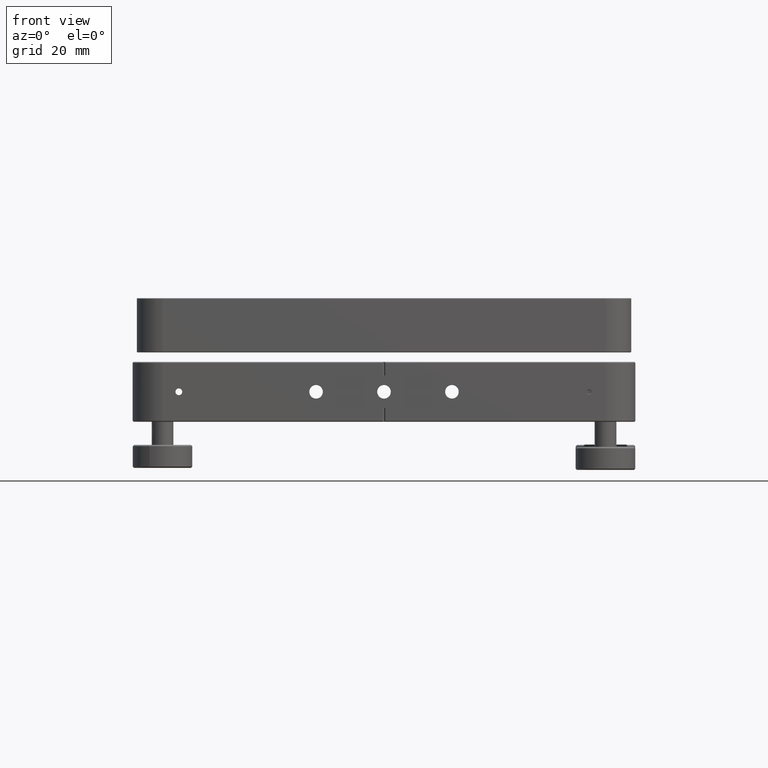
[diagram: clean part render]
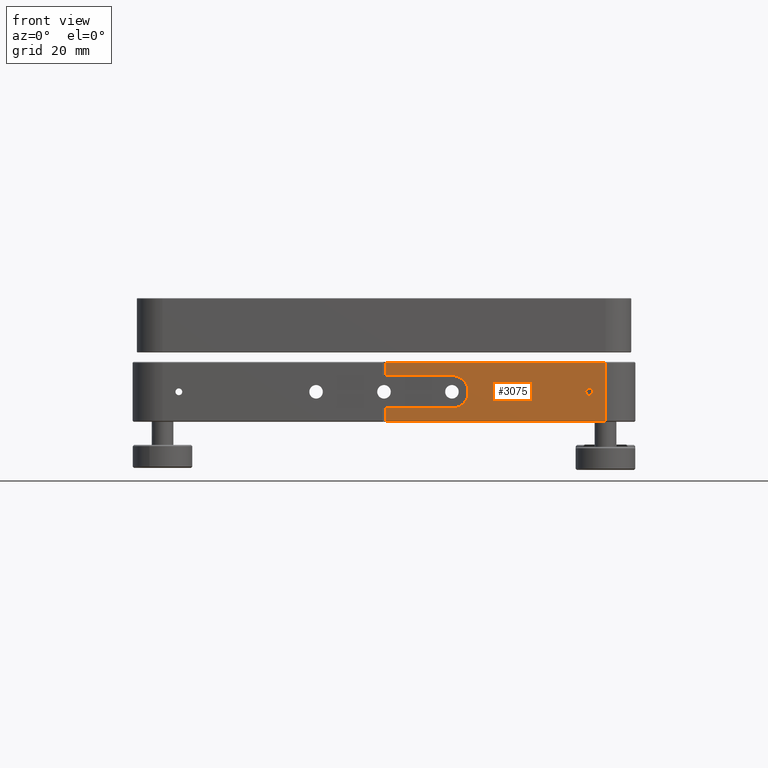
[diagram: same view with one face highlighted and labeled with its STEP entity id]
A machine part, front view. The second image highlights one B-rep face of the part: STEP entity #3075.
In plain terms, the highlighted planar face has unit normal (0, 1, 0).
Its self-contained STEP definition (entity closure, byte-faithful):
#113 = DIRECTION ( 'NONE',  ( -0.000000000000000000, -1.000000000000000000, -0.000000000000000000 ) ) ;
#136 = PLANE ( 'NONE',  #19775 ) ;
#246 = AXIS2_PLACEMENT_3D ( 'NONE', #15838, #5264, #2148 ) ;
#326 = CARTESIAN_POINT ( 'NONE',  ( -92.50000000000000000, -92.50000000000000000, 11.00000000000000000 ) ) ;
#571 = DIRECTION ( 'NONE',  ( -0.000000000000000000, -0.000000000000000000, 1.000000000000000000 ) ) ;
#1625 = CARTESIAN_POINT ( 'NONE',  ( 25.00000000000000711, -92.50000000000000000, -5.999999999999989342 ) ) ;
#1671 = ORIENTED_EDGE ( 'NONE', *, *, #18076, .F. ) ;
#2148 = DIRECTION ( 'NONE',  ( 0.000000000000000000, 0.000000000000000000, -1.000000000000000000 ) ) ;
#2226 = ORIENTED_EDGE ( 'NONE', *, *, #7665, .T. ) ;
#2324 = CARTESIAN_POINT ( 'NONE',  ( 81.49999999999998579, -92.50000000000000000, 10.69999999999997620 ) ) ;
#2533 = VERTEX_POINT ( 'NONE', #11035 ) ;
#2798 = ORIENTED_EDGE ( 'NONE', *, *, #16070, .T. ) ;
#2958 = VERTEX_POINT ( 'NONE', #10524 ) ;
#3075 = ADVANCED_FACE ( 'NONE', ( #7792, #17242 ), #136, .F. ) ;
#3689 = CARTESIAN_POINT ( 'NONE',  ( 0.4999999999999930611, -92.50000000000000000, -10.70000000000003304 ) ) ;
#3783 = CARTESIAN_POINT ( 'NONE',  ( 0.4999999999999930611, -92.50000000000000000, 11.00000000000000000 ) ) ;
#3790 = VECTOR ( 'NONE', #9283, 1000.000000000000000 ) ;
#3816 = EDGE_CURVE ( 'NONE', #2533, #11163, #14345, .T. ) ;
#3902 = EDGE_LOOP ( 'NONE', ( #2798, #2226, #19443, #12929, #15583, #12734, #12758, #16427 ) ) ;
#4288 = DIRECTION ( 'NONE',  ( -0.000000000000000000, -0.000000000000000000, -1.000000000000000000 ) ) ;
#4334 = EDGE_LOOP ( 'NONE', ( #10576, #1671 ) ) ;
#4572 = CARTESIAN_POINT ( 'NONE',  ( 24.99999999999999289, -92.50000000000000000, 6.000000000000008882 ) ) ;
#4634 = DIRECTION ( 'NONE',  ( 1.000000000000000000, 0.000000000000000000, 0.000000000000000000 ) ) ;
#4719 = EDGE_CURVE ( 'NONE', #16888, #2958, #10953, .T. ) ;
#5264 = DIRECTION ( 'NONE',  ( -0.000000000000000000, -1.000000000000000000, -0.000000000000000000 ) ) ;
#5610 = DIRECTION ( 'NONE',  ( 0.000000000000000000, 0.000000000000000000, -1.000000000000000000 ) ) ;
#6476 = DIRECTION ( 'NONE',  ( 0.000000000000000000, -0.000000000000000000, 1.000000000000000000 ) ) ;
#6772 = CARTESIAN_POINT ( 'NONE',  ( 0.4999999999999930611, -92.50000000000000000, 10.69999999999997620 ) ) ;
#7332 = CIRCLE ( 'NONE', #246, 1.249999999999987121 ) ;
#7344 = DIRECTION ( 'NONE',  ( -1.000000000000000000, 0.000000000000000000, -3.122502256758253263E-16 ) ) ;
#7665 = EDGE_CURVE ( 'NONE', #18441, #12151, #13166, .T. ) ;
#7792 = FACE_BOUND ( 'NONE', #4334, .T. ) ;
#8097 = VERTEX_POINT ( 'NONE', #18569 ) ;
#8165 = CARTESIAN_POINT ( 'NONE',  ( 75.50000000000000000, -92.50000000000000000, -1.249999999999987343 ) ) ;
#8486 = CARTESIAN_POINT ( 'NONE',  ( 0.4999999999999930611, -92.50000000000000000, 6.000000000000001776 ) ) ;
#8833 = VERTEX_POINT ( 'NONE', #8486 ) ;
#9210 = CARTESIAN_POINT ( 'NONE',  ( 0.4999999999999930611, -92.50000000000000000, 11.00000000000000000 ) ) ;
#9283 = DIRECTION ( 'NONE',  ( 1.000000000000000000, -0.000000000000000000, 3.122502256758252277E-16 ) ) ;
#9801 = VECTOR ( 'NONE', #4634, 1000.000000000000000 ) ;
#10431 = VECTOR ( 'NONE', #19287, 1000.000000000000000 ) ;
#10524 = CARTESIAN_POINT ( 'NONE',  ( 75.50000000000000000, -92.50000000000000000, 1.249999999999987121 ) ) ;
#10576 = ORIENTED_EDGE ( 'NONE', *, *, #4719, .F. ) ;
#10716 = LINE ( 'NONE', #9210, #17277 ) ;
#10760 = LINE ( 'NONE', #14991, #18659 ) ;
#10953 = CIRCLE ( 'NONE', #13213, 1.249999999999987121 ) ;
#11035 = CARTESIAN_POINT ( 'NONE',  ( 25.00000000000000711, -92.50000000000000000, -5.999999999999989342 ) ) ;
#11163 = VERTEX_POINT ( 'NONE', #4572 ) ;
#11164 = EDGE_CURVE ( 'NONE', #12151, #8833, #10716, .T. ) ;
#11587 = VECTOR ( 'NONE', #571, 1000.000000000000000 ) ;
#11616 = EDGE_CURVE ( 'NONE', #15620, #2533, #12311, .T. ) ;
#12151 = VERTEX_POINT ( 'NONE', #6772 ) ;
#12311 = LINE ( 'NONE', #1625, #3790 ) ;
#12400 = LINE ( 'NONE', #16723, #9801 ) ;
#12528 = DIRECTION ( 'NONE',  ( 0.000000000000000000, 1.000000000000000000, 0.000000000000000000 ) ) ;
#12607 = DIRECTION ( 'NONE',  ( 0.000000000000000000, 0.000000000000000000, -1.000000000000000000 ) ) ;
#12734 = ORIENTED_EDGE ( 'NONE', *, *, #11616, .F. ) ;
#12758 = ORIENTED_EDGE ( 'NONE', *, *, #17538, .T. ) ;
#12929 = ORIENTED_EDGE ( 'NONE', *, *, #13609, .F. ) ;
#13014 = EDGE_CURVE ( 'NONE', #17377, #8097, #12400, .T. ) ;
#13166 = LINE ( 'NONE', #14369, #10431 ) ;
#13213 = AXIS2_PLACEMENT_3D ( 'NONE', #18815, #113, #12607 ) ;
#13372 = CARTESIAN_POINT ( 'NONE',  ( 25.00000000000000000, -92.50000000000000000, 1.531726841841384132E-14 ) ) ;
#13480 = VECTOR ( 'NONE', #4288, 1000.000000000000000 ) ;
#13609 = EDGE_CURVE ( 'NONE', #11163, #8833, #10760, .T. ) ;
#14345 = CIRCLE ( 'NONE', #18510, 5.999999999999999112 ) ;
#14369 = CARTESIAN_POINT ( 'NONE',  ( 0.4999999999999930611, -92.50000000000000000, 10.69999999999997620 ) ) ;
#14382 = CARTESIAN_POINT ( 'NONE',  ( 81.49999999999998579, -92.50000000000000000, 11.00000000000000000 ) ) ;
#14644 = CARTESIAN_POINT ( 'NONE',  ( 0.4999999999999930611, -92.50000000000000000, -5.999999999999994671 ) ) ;
#14674 = DIRECTION ( 'NONE',  ( 0.000000000000000000, -1.000000000000000000, 0.000000000000000000 ) ) ;
#14991 = CARTESIAN_POINT ( 'NONE',  ( 24.99999999999999289, -92.50000000000000000, 6.000000000000008882 ) ) ;
#15583 = ORIENTED_EDGE ( 'NONE', *, *, #3816, .F. ) ;
#15620 = VERTEX_POINT ( 'NONE', #14644 ) ;
#15838 = CARTESIAN_POINT ( 'NONE',  ( 75.50000000000000000, -92.50000000000000000, -1.224646799147350495E-16 ) ) ;
#16070 = EDGE_CURVE ( 'NONE', #8097, #18441, #17396, .T. ) ;
#16427 = ORIENTED_EDGE ( 'NONE', *, *, #13014, .T. ) ;
#16723 = CARTESIAN_POINT ( 'NONE',  ( -92.50000000000000000, -92.50000000000000000, -10.70000000000003304 ) ) ;
#16853 = DIRECTION ( 'NONE',  ( -0.000000000000000000, -0.000000000000000000, -1.000000000000000000 ) ) ;
#16888 = VERTEX_POINT ( 'NONE', #8165 ) ;
#17242 = FACE_OUTER_BOUND ( 'NONE', #3902, .T. ) ;
#17277 = VECTOR ( 'NONE', #16853, 1000.000000000000000 ) ;
#17377 = VERTEX_POINT ( 'NONE', #3689 ) ;
#17396 = LINE ( 'NONE', #14382, #11587 ) ;
#17538 = EDGE_CURVE ( 'NONE', #15620, #17377, #17561, .T. ) ;
#17561 = LINE ( 'NONE', #3783, #13480 ) ;
#18076 = EDGE_CURVE ( 'NONE', #2958, #16888, #7332, .T. ) ;
#18441 = VERTEX_POINT ( 'NONE', #2324 ) ;
#18510 = AXIS2_PLACEMENT_3D ( 'NONE', #13372, #14674, #5610 ) ;
#18569 = CARTESIAN_POINT ( 'NONE',  ( 81.49999999999998579, -92.50000000000000000, -10.70000000000003304 ) ) ;
#18659 = VECTOR ( 'NONE', #7344, 1000.000000000000000 ) ;
#18815 = CARTESIAN_POINT ( 'NONE',  ( 75.50000000000000000, -92.50000000000000000, -1.224646799147350495E-16 ) ) ;
#19287 = DIRECTION ( 'NONE',  ( -1.000000000000000000, 0.000000000000000000, 0.000000000000000000 ) ) ;
#19443 = ORIENTED_EDGE ( 'NONE', *, *, #11164, .T. ) ;
#19775 = AXIS2_PLACEMENT_3D ( 'NONE', #326, #12528, #6476 ) ;